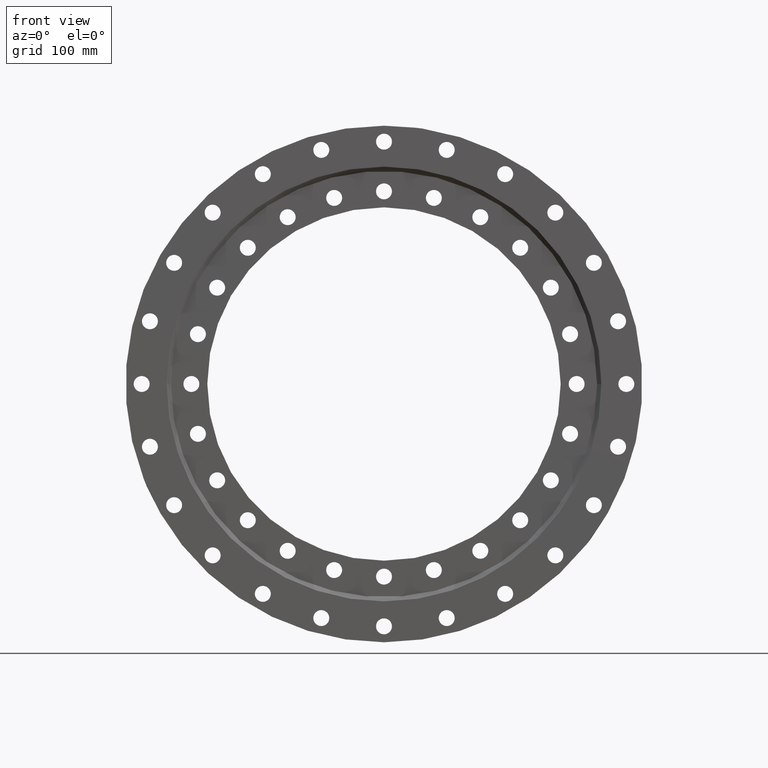
[diagram: clean part render]
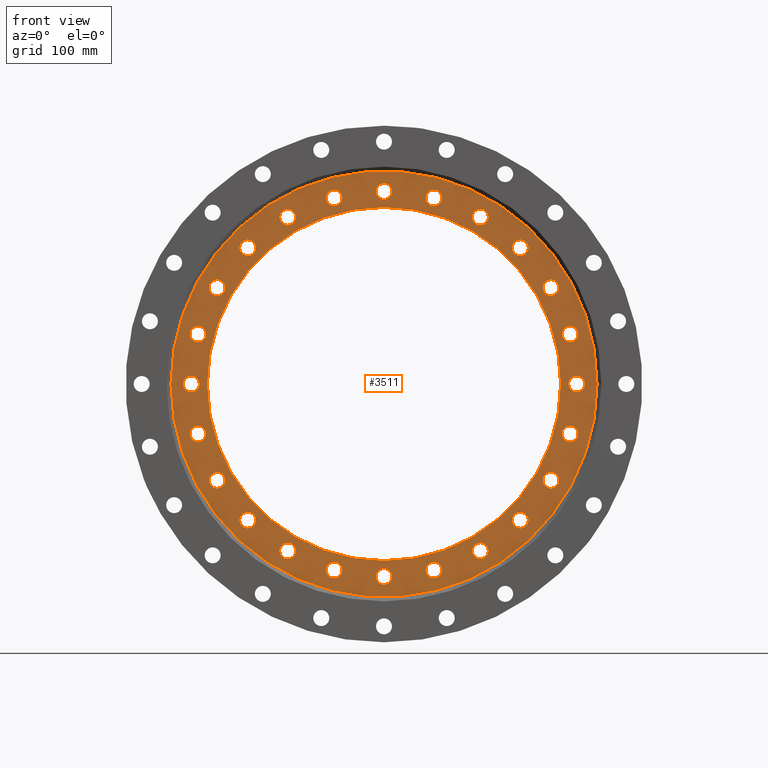
[diagram: same view with one face highlighted and labeled with its STEP entity id]
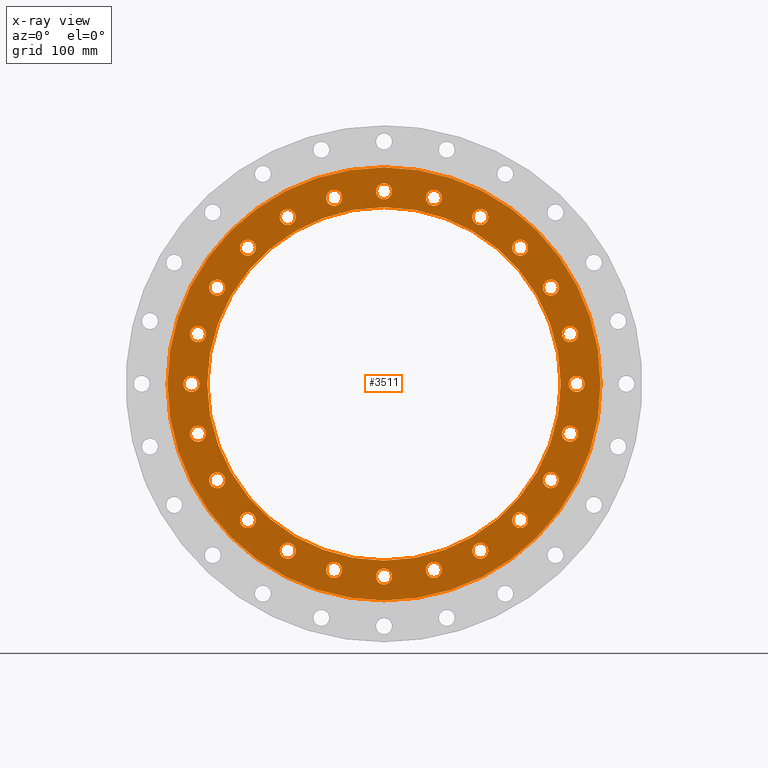
[diagram: x-ray of the same camera — body ghosted, the highlighted face saturated]
A machine part, front view. The second image highlights one B-rep face of the part: STEP entity #3511.
The next image is the same camera in x-ray: the body ghosted, the highlighted face saturated — about 0% of this face is hidden behind the body in this view.
In plain terms, the highlighted planar face has unit normal (-0, 1, -0).
Its self-contained STEP definition (entity closure, byte-faithful):
#8 = VERTEX_POINT ( 'NONE', #4380 ) ;
#20 = CARTESIAN_POINT ( 'NONE',  ( -132.7500000000020200, -27.00000000000004600, -229.9297447047673600 ) ) ;
#24 = AXIS2_PLACEMENT_3D ( 'NONE', #2376, #2435, #1545 ) ;
#26 = DIRECTION ( 'NONE',  ( -1.540743955509788700E-033, 1.000000000000000000, -2.727064569436390000E-017 ) ) ;
#29 = VERTEX_POINT ( 'NONE', #3546 ) ;
#35 = ORIENTED_EDGE ( 'NONE', *, *, #2725, .T. ) ;
#62 = EDGE_LOOP ( 'NONE', ( #1670, #3372 ) ) ;
#103 = AXIS2_PLACEMENT_3D ( 'NONE', #2787, #2152, #3173 ) ;
#109 = EDGE_LOOP ( 'NONE', ( #5662, #4720 ) ) ;
#111 = CIRCLE ( 'NONE', #1296, 10.99999999999999800 ) ;
#122 = CIRCLE ( 'NONE', #2431, 10.99999999999999800 ) ;
#184 = ORIENTED_EDGE ( 'NONE', *, *, #1236, .T. ) ;
#218 = AXIS2_PLACEMENT_3D ( 'NONE', #2883, #2900, #2918 ) ;
#248 = FACE_BOUND ( 'NONE', #3919, .T. ) ;
#265 = CARTESIAN_POINT ( 'NONE',  ( -1.974945732552023400E-012, -27.00000000000004600, -276.5000000000000000 ) ) ;
#273 = EDGE_CURVE ( 'NONE', #5757, #5338, #1240, .T. ) ;
#285 = DIRECTION ( 'NONE',  ( 0.0000000000000000000, 1.000000000000000000, -2.727064569436389400E-017 ) ) ;
#291 = FACE_BOUND ( 'NONE', #109, .T. ) ;
#292 = VERTEX_POINT ( 'NONE', #3681 ) ;
#296 = ORIENTED_EDGE ( 'NONE', *, *, #3620, .T. ) ;
#297 = AXIS2_PLACEMENT_3D ( 'NONE', #5639, #5746, #5729 ) ;
#304 = CIRCLE ( 'NONE', #2892, 10.99999999999999500 ) ;
#308 = AXIS2_PLACEMENT_3D ( 'NONE', #1824, #1819, #1753 ) ;
#311 = FACE_BOUND ( 'NONE', #571, .T. ) ;
#315 = ORIENTED_EDGE ( 'NONE', *, *, #4764, .T. ) ;
#319 = AXIS2_PLACEMENT_3D ( 'NONE', #1495, #1541, #1559 ) ;
#320 = FACE_BOUND ( 'NONE', #4800, .T. ) ;
#356 = EDGE_CURVE ( 'NONE', #5340, #2677, #3697, .T. ) ;
#357 = DIRECTION ( 'NONE',  ( 0.8660254037844326000, 0.0000000000000000000, 0.5000000000000105500 ) ) ;
#372 = FACE_OUTER_BOUND ( 'NONE', #4682, .T. ) ;
#373 = ORIENTED_EDGE ( 'NONE', *, *, #3935, .T. ) ;
#390 = AXIS2_PLACEMENT_3D ( 'NONE', #1077, #1091, #1113 ) ;
#418 = CARTESIAN_POINT ( 'NONE',  ( 256.4533068797478600, -27.00000000000002500, 68.71645647471839900 ) ) ;
#436 = FACE_BOUND ( 'NONE', #1393, .T. ) ;
#450 = ORIENTED_EDGE ( 'NONE', *, *, #3712, .T. ) ;
#453 = VERTEX_POINT ( 'NONE', #3661 ) ;
#455 = CARTESIAN_POINT ( 'NONE',  ( 265.5000000000000000, -27.00000000000003900, -11.00000000000104400 ) ) ;
#457 = AXIS2_PLACEMENT_3D ( 'NONE', #20, #26, #1770 ) ;
#501 = EDGE_LOOP ( 'NONE', ( #3448, #4189 ) ) ;
#508 = FACE_BOUND ( 'NONE', #3594, .T. ) ;
#516 = FACE_BOUND ( 'NONE', #1590, .T. ) ;
#519 = CIRCLE ( 'NONE', #2649, 11.00000000000000400 ) ;
#527 = VERTEX_POINT ( 'NONE', #3740 ) ;
#528 = FACE_BOUND ( 'NONE', #4249, .T. ) ;
#543 = DIRECTION ( 'NONE',  ( -3.081487911019577400E-033, 1.000000000000000000, -2.727064569436389700E-017 ) ) ;
#556 = EDGE_CURVE ( 'NONE', #762, #3642, #5644, .T. ) ;
#560 = DIRECTION ( 'NONE',  ( 0.8660254037844326000, 0.0000000000000000000, 0.5000000000000105500 ) ) ;
#563 = DIRECTION ( 'NONE',  ( -1.540743955509788700E-033, 1.000000000000000000, -2.727064569436389100E-017 ) ) ;
#571 = EDGE_LOOP ( 'NONE', ( #3307, #35 ) ) ;
#574 = CIRCLE ( 'NONE', #2937, 11.00000000000000900 ) ;
#580 = CIRCLE ( 'NONE', #5035, 11.00000000000002300 ) ;
#585 = AXIS2_PLACEMENT_3D ( 'NONE', #4138, #4156, #4177 ) ;
#615 = CIRCLE ( 'NONE', #3776, 11.00000000000001100 ) ;
#625 = DIRECTION ( 'NONE',  ( -0.8660254037844364900, 0.0000000000000000000, -0.5000000000000036600 ) ) ;
#626 = CARTESIAN_POINT ( 'NONE',  ( 229.9297447047688400, -27.00000000000002500, 132.7499999999993700 ) ) ;
#627 = DIRECTION ( 'NONE',  ( 9.244463733058732100E-033, 1.000000000000000000, -2.727064569436388400E-017 ) ) ;
#629 = DIRECTION ( 'NONE',  ( -0.8660254037844364900, 0.0000000000000000000, -0.5000000000000036600 ) ) ;
#651 = CARTESIAN_POINT ( 'NONE',  ( -229.9297447047698300, -27.00000000000004600, -132.7499999999977800 ) ) ;
#668 = EDGE_LOOP ( 'NONE', ( #4393, #4535 ) ) ;
#703 = VERTEX_POINT ( 'NONE', #3327 ) ;
#705 = CIRCLE ( 'NONE', #1651, 11.00000000000001200 ) ;
#717 = FACE_BOUND ( 'NONE', #3013, .T. ) ;
#729 = CARTESIAN_POINT ( 'NONE',  ( -229.9297447047668800, -27.00000000000002500, 121.7500000000027900 ) ) ;
#738 = EDGE_CURVE ( 'NONE', #3779, #5395, #5104, .T. ) ;
#751 = FACE_BOUND ( 'NONE', #5250, .T. ) ;
#762 = VERTEX_POINT ( 'NONE', #4252 ) ;
#787 = DIRECTION ( 'NONE',  ( -0.5000000000000007800, 0.0000000000000000000, 0.8660254037844382600 ) ) ;
#791 = FACE_BOUND ( 'NONE', #4057, .T. ) ;
#797 = DIRECTION ( 'NONE',  ( -3.081487911019577400E-033, 1.000000000000000000, -2.727064569436389700E-017 ) ) ;
#812 = CARTESIAN_POINT ( 'NONE',  ( -187.7368504050301100, -27.00000000000004600, -187.7368504050266400 ) ) ;
#828 = CIRCLE ( 'NONE', #4672, 11.00000000000000000 ) ;
#829 = DIRECTION ( 'NONE',  ( 0.0000000000000000000, 1.000000000000000000, -2.727064569436389400E-017 ) ) ;
#832 = FACE_BOUND ( 'NONE', #1767, .T. ) ;
#848 = AXIS2_PLACEMENT_3D ( 'NONE', #4556, #3936, #3563 ) ;
#867 = VERTEX_POINT ( 'NONE', #1883 ) ;
#906 = CIRCLE ( 'NONE', #3531, 10.99999999999998000 ) ;
#907 = DIRECTION ( 'NONE',  ( 0.0000000000000000000, 2.325269184068102600E-017, 1.000000000000000000 ) ) ;
#918 = FACE_BOUND ( 'NONE', #5332, .T. ) ;
#928 = EDGE_CURVE ( 'NONE', #3750, #4561, #4621, .T. ) ;
#955 = CIRCLE ( 'NONE', #1029, 10.99999999999998900 ) ;
#956 = DIRECTION ( 'NONE',  ( -0.9659258262890670900, 0.0000000000000000000, -0.2588190451025252400 ) ) ;
#960 = FACE_BOUND ( 'NONE', #1122, .T. ) ;
#979 = FACE_BOUND ( 'NONE', #4204, .T. ) ;
#986 = FACE_BOUND ( 'NONE', #1826, .T. ) ;
#993 = DIRECTION ( 'NONE',  ( 0.7071067811865537900, 0.0000000000000000000, -0.7071067811865412400 ) ) ;
#1029 = AXIS2_PLACEMENT_3D ( 'NONE', #2696, #2835, #2827 ) ;
#1030 = AXIS2_PLACEMENT_3D ( 'NONE', #4921, #5331, #5354 ) ;
#1037 = FACE_BOUND ( 'NONE', #5109, .T. ) ;
#1042 = VERTEX_POINT ( 'NONE', #5458 ) ;
#1043 = EDGE_CURVE ( 'NONE', #2146, #4148, #4502, .T. ) ;
#1057 = FACE_BOUND ( 'NONE', #668, .T. ) ;
#1063 = ORIENTED_EDGE ( 'NONE', *, *, #556, .T. ) ;
#1064 = EDGE_CURVE ( 'NONE', #1128, #2248, #4230, .T. ) ;
#1071 = VERTEX_POINT ( 'NONE', #455 ) ;
#1077 = CARTESIAN_POINT ( 'NONE',  ( 68.71645647471955000, -27.00000000000001800, 256.4533068797475700 ) ) ;
#1083 = VERTEX_POINT ( 'NONE', #729 ) ;
#1091 = DIRECTION ( 'NONE',  ( -1.540743955509788700E-033, 1.000000000000000000, -2.727064569436389700E-017 ) ) ;
#1093 = EDGE_CURVE ( 'NONE', #2553, #2951, #4157, .T. ) ;
#1113 = DIRECTION ( 'NONE',  ( 0.2588190451025075300, 0.0000000000000000000, 0.9659258262890719800 ) ) ;
#1122 = EDGE_LOOP ( 'NONE', ( #4306, #4388 ) ) ;
#1128 = VERTEX_POINT ( 'NONE', #265 ) ;
#1136 = FACE_BOUND ( 'NONE', #5404, .T. ) ;
#1159 = CARTESIAN_POINT ( 'NONE',  ( -68.71645647472132600, -27.00000000000004600, -256.4533068797471200 ) ) ;
#1166 = VERTEX_POINT ( 'NONE', #2538 ) ;
#1176 = DIRECTION ( 'NONE',  ( 1.540743955509788700E-033, 1.000000000000000000, -2.727064569436389100E-017 ) ) ;
#1189 = FACE_BOUND ( 'NONE', #5270, .T. ) ;
#1202 = CARTESIAN_POINT ( 'NONE',  ( 68.71645647471750400, -27.00000000000004600, -245.4533068797480800 ) ) ;
#1207 = CARTESIAN_POINT ( 'NONE',  ( 187.7368504050288000, -27.00000000000001800, 187.7368504050279500 ) ) ;
#1218 = DIRECTION ( 'NONE',  ( -0.2588190451025145200, 0.0000000000000000000, -0.9659258262890698700 ) ) ;
#1236 = EDGE_CURVE ( 'NONE', #3851, #2004, #3560, .T. ) ;
#1240 = CIRCLE ( 'NONE', #4659, 11.00000000000001100 ) ;
#1272 = EDGE_CURVE ( 'NONE', #4172, #2471, #3371, .T. ) ;
#1276 = FACE_BOUND ( 'NONE', #501, .T. ) ;
#1282 = DIRECTION ( 'NONE',  ( -3.081487911019577400E-033, 1.000000000000000000, -2.727064569436389400E-017 ) ) ;
#1296 = AXIS2_PLACEMENT_3D ( 'NONE', #4153, #4175, #4196 ) ;
#1309 = CARTESIAN_POINT ( 'NONE',  ( -229.9297447047668800, -27.00000000000002500, 132.7500000000027900 ) ) ;
#1330 = CARTESIAN_POINT ( 'NONE',  ( -132.7499999999969900, -27.00000000000001800, 229.9297447047702300 ) ) ;
#1331 = DIRECTION ( 'NONE',  ( 0.7071067811865386900, 0.0000000000000000000, 0.7071067811865563400 ) ) ;
#1332 = FACE_BOUND ( 'NONE', #3073, .T. ) ;
#1345 = FACE_BOUND ( 'NONE', #3421, .T. ) ;
#1361 = FACE_BOUND ( 'NONE', #62, .T. ) ;
#1377 = CARTESIAN_POINT ( 'NONE',  ( 256.4533068797478600, -27.00000000000002500, 68.71645647471839900 ) ) ;
#1379 = DIRECTION ( 'NONE',  ( 1.000000000000000000, 0.0000000000000000000, 1.047444401652938900E-014 ) ) ;
#1380 = DIRECTION ( 'NONE',  ( -3.081487911019577400E-033, 1.000000000000000000, -2.727064569436389700E-017 ) ) ;
#1383 = DIRECTION ( 'NONE',  ( -0.0000000000000000000, 1.000000000000000000, -2.727064569436389700E-017 ) ) ;
#1385 = CARTESIAN_POINT ( 'NONE',  ( 265.5000000000000000, -27.00000000000003900, -1.048568241134486000E-012 ) ) ;
#1393 = EDGE_LOOP ( 'NONE', ( #3593, #4261 ) ) ;
#1413 = ORIENTED_EDGE ( 'NONE', *, *, #2387, .T. ) ;
#1452 = DIRECTION ( 'NONE',  ( 0.5000000000000074400, 0.0000000000000000000, -0.8660254037844342700 ) ) ;
#1460 = DIRECTION ( 'NONE',  ( -1.540743955509788700E-033, 1.000000000000000000, -2.727064569436389100E-017 ) ) ;
#1465 = DIRECTION ( 'NONE',  ( 9.244463733058732100E-033, 1.000000000000000000, -2.727064569436389100E-017 ) ) ;
#1495 = CARTESIAN_POINT ( 'NONE',  ( 265.5000000000000000, -27.00000000000003900, -1.048568241134486000E-012 ) ) ;
#1511 = ORIENTED_EDGE ( 'NONE', *, *, #2481, .T. ) ;
#1521 = FACE_BOUND ( 'NONE', #2195, .T. ) ;
#1533 = CIRCLE ( 'NONE', #3639, 11.00000000000001100 ) ;
#1541 = DIRECTION ( 'NONE',  ( -3.081487911019577400E-033, 1.000000000000000000, -2.727064569436389700E-017 ) ) ;
#1545 = DIRECTION ( 'NONE',  ( -1.000000000000000000, 0.0000000000000000000, -3.491481338843111700E-015 ) ) ;
#1559 = DIRECTION ( 'NONE',  ( 1.000000000000000000, 0.0000000000000000000, 1.047444401652938900E-014 ) ) ;
#1588 = CIRCLE ( 'NONE', #4491, 11.00000000000001600 ) ;
#1589 = AXIS2_PLACEMENT_3D ( 'NONE', #3607, #3626, #3651 ) ;
#1590 = EDGE_LOOP ( 'NONE', ( #4650, #1063 ) ) ;
#1592 = CIRCLE ( 'NONE', #5259, 10.99999999999998400 ) ;
#1601 = CIRCLE ( 'NONE', #5150, 11.00000000000001100 ) ;
#1651 = AXIS2_PLACEMENT_3D ( 'NONE', #3225, #1460, #1452 ) ;
#1670 = ORIENTED_EDGE ( 'NONE', *, *, #2351, .T. ) ;
#1729 = CIRCLE ( 'NONE', #4498, 298.4125000000000800 ) ;
#1732 = VERTEX_POINT ( 'NONE', #3684 ) ;
#1741 = ORIENTED_EDGE ( 'NONE', *, *, #356, .T. ) ;
#1753 = DIRECTION ( 'NONE',  ( 6.982962677686258800E-015, 0.0000000000000000000, -1.000000000000000000 ) ) ;
#1767 = EDGE_LOOP ( 'NONE', ( #4454, #4605 ) ) ;
#1769 = AXIS2_PLACEMENT_3D ( 'NONE', #3314, #1775, #3906 ) ;
#1770 = DIRECTION ( 'NONE',  ( -0.4999999999999958900, 0.0000000000000000000, -0.8660254037844410400 ) ) ;
#1775 = DIRECTION ( 'NONE',  ( -0.0000000000000000000, 1.000000000000000000, -2.727064569436389700E-017 ) ) ;
#1776 = CIRCLE ( 'NONE', #2157, 10.99999999999998000 ) ;
#1778 = CIRCLE ( 'NONE', #4457, 11.00000000000001200 ) ;
#1812 = EDGE_CURVE ( 'NONE', #4644, #292, #705, .T. ) ;
#1815 = CARTESIAN_POINT ( 'NONE',  ( 187.7368504050273000, -27.00000000000004600, -176.7368504050294600 ) ) ;
#1819 = DIRECTION ( 'NONE',  ( -2.189528850507526700E-047, 1.000000000000000000, -2.727064569436389100E-017 ) ) ;
#1824 = CARTESIAN_POINT ( 'NONE',  ( -1.976292844031085600E-012, -27.00000000000004600, -265.5000000000000000 ) ) ;
#1826 = EDGE_LOOP ( 'NONE', ( #4443, #4475 ) ) ;
#1839 = ORIENTED_EDGE ( 'NONE', *, *, #4727, .T. ) ;
#1848 = CIRCLE ( 'NONE', #4305, 11.00000000000001600 ) ;
#1883 = CARTESIAN_POINT ( 'NONE',  ( -229.9297447047668800, -27.00000000000002500, 143.7500000000027600 ) ) ;
#1894 = EDGE_CURVE ( 'NONE', #2951, #2553, #955, .T. ) ;
#1900 = CIRCLE ( 'NONE', #5592, 10.99999999999998000 ) ;
#1912 = AXIS2_PLACEMENT_3D ( 'NONE', #2451, #2356, #2364 ) ;
#1913 = CARTESIAN_POINT ( 'NONE',  ( -68.71645647471572700, -27.00000000000001800, 256.4533068797486000 ) ) ;
#1952 = CARTESIAN_POINT ( 'NONE',  ( -68.71645647471572700, -27.00000000000001800, 267.4533068797486000 ) ) ;
#2004 = VERTEX_POINT ( 'NONE', #2584 ) ;
#2027 = EDGE_CURVE ( 'NONE', #29, #2921, #3655, .T. ) ;
#2045 = CIRCLE ( 'NONE', #390, 10.99999999999999300 ) ;
#2068 = CARTESIAN_POINT ( 'NONE',  ( 0.0000000000000000000, -27.00000000000002500, -1.098763298320856700E-016 ) ) ;
#2084 = DIRECTION ( 'NONE',  ( -0.0000000000000000000, 1.000000000000000000, -2.727064569436389700E-017 ) ) ;
#2111 = DIRECTION ( 'NONE',  ( 0.0000000000000000000, 2.849648420495781400E-017, 1.000000000000000000 ) ) ;
#2146 = VERTEX_POINT ( 'NONE', #5140 ) ;
#2152 = DIRECTION ( 'NONE',  ( 3.081487911019577400E-033, 1.000000000000000000, -2.727064569436389700E-017 ) ) ;
#2157 = AXIS2_PLACEMENT_3D ( 'NONE', #5779, #5852, #993 ) ;
#2174 = CARTESIAN_POINT ( 'NONE',  ( -256.4533068797484200, -27.00000000000003900, -79.71645647471662200 ) ) ;
#2177 = DIRECTION ( 'NONE',  ( 3.081487911019577400E-033, 1.000000000000000000, -2.727064569436389400E-017 ) ) ;
#2195 = EDGE_LOOP ( 'NONE', ( #2593, #3037 ) ) ;
#2248 = VERTEX_POINT ( 'NONE', #4967 ) ;
#2267 = VERTEX_POINT ( 'NONE', #2444 ) ;
#2302 = CARTESIAN_POINT ( 'NONE',  ( 0.0000000000000000000, -27.00000000000002500, -1.098763298320856700E-016 ) ) ;
#2330 = ORIENTED_EDGE ( 'NONE', *, *, #5394, .T. ) ;
#2345 = CARTESIAN_POINT ( 'NONE',  ( 132.7500000000004000, -27.00000000000001800, 229.9297447047682700 ) ) ;
#2351 = EDGE_CURVE ( 'NONE', #527, #4692, #304, .T. ) ;
#2356 = DIRECTION ( 'NONE',  ( -3.081487911019577400E-033, 1.000000000000000000, -2.727064569436389100E-017 ) ) ;
#2364 = DIRECTION ( 'NONE',  ( 0.8660254037844428200, 0.0000000000000000000, -0.4999999999999928900 ) ) ;
#2369 = CARTESIAN_POINT ( 'NONE',  ( 0.0000000000000000000, -27.00000000000002500, 298.4125000000000800 ) ) ;
#2376 = CARTESIAN_POINT ( 'NONE',  ( -265.5000000000000000, -27.00000000000003900, 2.904017446927684900E-012 ) ) ;
#2387 = EDGE_CURVE ( 'NONE', #867, #1083, #3257, .T. ) ;
#2431 = AXIS2_PLACEMENT_3D ( 'NONE', #2345, #3005, #2968 ) ;
#2432 = DIRECTION ( 'NONE',  ( 1.540743955509788700E-033, 1.000000000000000000, -2.727064569436389700E-017 ) ) ;
#2435 = DIRECTION ( 'NONE',  ( 3.081487911019577400E-033, 1.000000000000000000, -2.727064569436389400E-017 ) ) ;
#2444 = CARTESIAN_POINT ( 'NONE',  ( -256.4533068797468900, -27.00000000000002500, 79.71645647472222200 ) ) ;
#2451 = CARTESIAN_POINT ( 'NONE',  ( 229.9297447047677800, -27.00000000000004600, -132.7500000000011900 ) ) ;
#2454 = EDGE_CURVE ( 'NONE', #3452, #3979, #4040, .T. ) ;
#2470 = EDGE_CURVE ( 'NONE', #1083, #867, #519, .T. ) ;
#2471 = VERTEX_POINT ( 'NONE', #2710 ) ;
#2476 = VERTEX_POINT ( 'NONE', #3130 ) ;
#2481 = EDGE_CURVE ( 'NONE', #5278, #1042, #3445, .T. ) ;
#2487 = CARTESIAN_POINT ( 'NONE',  ( -132.7500000000020200, -27.00000000000004600, -240.9297447047673600 ) ) ;
#2489 = DIRECTION ( 'NONE',  ( -0.0000000000000000000, 1.000000000000000000, -2.727064569436389700E-017 ) ) ;
#2505 = CARTESIAN_POINT ( 'NONE',  ( -187.7368504050259900, -27.00000000000001800, 176.7368504050307900 ) ) ;
#2508 = CARTESIAN_POINT ( 'NONE',  ( 256.4533068797473400, -27.00000000000003900, -68.71645647472043100 ) ) ;
#2511 = EDGE_CURVE ( 'NONE', #5306, #2267, #580, .T. ) ;
#2538 = CARTESIAN_POINT ( 'NONE',  ( 187.7368504050273000, -27.00000000000004600, -198.7368504050294900 ) ) ;
#2539 = CARTESIAN_POINT ( 'NONE',  ( 229.9297447047688400, -27.00000000000002500, 132.7499999999993700 ) ) ;
#2540 = ORIENTED_EDGE ( 'NONE', *, *, #3726, .T. ) ;
#2541 = CARTESIAN_POINT ( 'NONE',  ( -132.7500000000020200, -27.00000000000004600, -218.9297447047673300 ) ) ;
#2553 = VERTEX_POINT ( 'NONE', #2541 ) ;
#2559 = CARTESIAN_POINT ( 'NONE',  ( -256.4533068797468900, -27.00000000000002500, 68.71645647472223600 ) ) ;
#2584 = CARTESIAN_POINT ( 'NONE',  ( -265.5000000000000000, -27.00000000000003900, -10.99999999999709200 ) ) ;
#2593 = ORIENTED_EDGE ( 'NONE', *, *, #3790, .T. ) ;
#2608 = ORIENTED_EDGE ( 'NONE', *, *, #5606, .F. ) ;
#2609 = VERTEX_POINT ( 'NONE', #3486 ) ;
#2622 = CARTESIAN_POINT ( 'NONE',  ( 132.7500000000004000, -27.00000000000001800, 240.9297447047682400 ) ) ;
#2625 = AXIS2_PLACEMENT_3D ( 'NONE', #2539, #3100, #357 ) ;
#2640 = CARTESIAN_POINT ( 'NONE',  ( -229.9297447047698300, -27.00000000000004600, -132.7499999999977800 ) ) ;
#2649 = AXIS2_PLACEMENT_3D ( 'NONE', #3075, #5697, #3473 ) ;
#2654 = DIRECTION ( 'NONE',  ( 9.244463733058732100E-033, 1.000000000000000000, -2.727064569436388400E-017 ) ) ;
#2677 = VERTEX_POINT ( 'NONE', #5093 ) ;
#2695 = CARTESIAN_POINT ( 'NONE',  ( -187.7368504050301100, -27.00000000000004600, -187.7368504050266400 ) ) ;
#2696 = CARTESIAN_POINT ( 'NONE',  ( -132.7500000000020200, -27.00000000000004600, -229.9297447047673600 ) ) ;
#2710 = CARTESIAN_POINT ( 'NONE',  ( -187.7368504050259900, -27.00000000000001800, 198.7368504050307900 ) ) ;
#2720 = DIRECTION ( 'NONE',  ( 0.0000000000000000000, 2.325269184068102600E-017, 1.000000000000000000 ) ) ;
#2725 = EDGE_CURVE ( 'NONE', #5338, #5757, #4438, .T. ) ;
#2726 = CIRCLE ( 'NONE', #3364, 10.99999999999998400 ) ;
#2744 = CARTESIAN_POINT ( 'NONE',  ( 0.0000000000000000000, -27.00000000000003200, -1.098763298320854800E-016 ) ) ;
#2771 = EDGE_CURVE ( 'NONE', #2609, #5774, #1588, .T. ) ;
#2787 = CARTESIAN_POINT ( 'NONE',  ( -187.7368504050259900, -27.00000000000001800, 187.7368504050307900 ) ) ;
#2827 = DIRECTION ( 'NONE',  ( -0.4999999999999958900, 0.0000000000000000000, -0.8660254037844410400 ) ) ;
#2831 = CARTESIAN_POINT ( 'NONE',  ( -256.4533068797484200, -27.00000000000003900, -68.71645647471662200 ) ) ;
#2835 = DIRECTION ( 'NONE',  ( -1.540743955509788700E-033, 1.000000000000000000, -2.727064569436390000E-017 ) ) ;
#2855 = DIRECTION ( 'NONE',  ( -0.9659258262890693100, 0.0000000000000000000, 0.2588190451025169100 ) ) ;
#2879 = VERTEX_POINT ( 'NONE', #5443 ) ;
#2882 = CIRCLE ( 'NONE', #1589, 10.99999999999999100 ) ;
#2883 = CARTESIAN_POINT ( 'NONE',  ( -187.7368504050259900, -27.00000000000001800, 187.7368504050307900 ) ) ;
#2886 = EDGE_CURVE ( 'NONE', #4561, #3750, #2948, .T. ) ;
#2892 = AXIS2_PLACEMENT_3D ( 'NONE', #1330, #3941, #787 ) ;
#2896 = CARTESIAN_POINT ( 'NONE',  ( -187.7368504050301100, -27.00000000000004600, -176.7368504050266200 ) ) ;
#2900 = DIRECTION ( 'NONE',  ( 3.081487911019577400E-033, 1.000000000000000000, -2.727064569436389700E-017 ) ) ;
#2918 = DIRECTION ( 'NONE',  ( -0.7071067811865487900, 0.0000000000000000000, 0.7071067811865462400 ) ) ;
#2921 = VERTEX_POINT ( 'NONE', #3744 ) ;
#2935 = CIRCLE ( 'NONE', #2625, 11.00000000000000000 ) ;
#2937 = AXIS2_PLACEMENT_3D ( 'NONE', #418, #797, #4025 ) ;
#2942 = DIRECTION ( 'NONE',  ( 0.0000000000000000000, 2.849648420495781400E-017, 1.000000000000000000 ) ) ;
#2948 = CIRCLE ( 'NONE', #4292, 10.99999999999999800 ) ;
#2949 = EDGE_CURVE ( 'NONE', #2995, #4766, #5362, .T. ) ;
#2951 = VERTEX_POINT ( 'NONE', #2487 ) ;
#2963 = DIRECTION ( 'NONE',  ( 3.081487911019577400E-033, 1.000000000000000000, -2.727064569436389400E-017 ) ) ;
#2968 = DIRECTION ( 'NONE',  ( 0.4999999999999879000, 0.0000000000000000000, 0.8660254037844455900 ) ) ;
#2977 = PLANE ( 'NONE',  #1769 ) ;
#2983 = CIRCLE ( 'NONE', #1030, 10.99999999999999500 ) ;
#2994 = AXIS2_PLACEMENT_3D ( 'NONE', #2695, #285, #3051 ) ;
#2995 = VERTEX_POINT ( 'NONE', #4061 ) ;
#3005 = DIRECTION ( 'NONE',  ( -1.540743955509788700E-033, 1.000000000000000000, -2.727064569436389700E-017 ) ) ;
#3013 = EDGE_LOOP ( 'NONE', ( #4594, #3190 ) ) ;
#3017 = VERTEX_POINT ( 'NONE', #3361 ) ;
#3024 = CARTESIAN_POINT ( 'NONE',  ( -1.976292844031085600E-012, -27.00000000000004600, -265.5000000000000000 ) ) ;
#3025 = DIRECTION ( 'NONE',  ( -2.189528850507526700E-047, 1.000000000000000000, -2.727064569436389100E-017 ) ) ;
#3037 = ORIENTED_EDGE ( 'NONE', *, *, #1272, .T. ) ;
#3038 = DIRECTION ( 'NONE',  ( 6.982962677686258800E-015, 0.0000000000000000000, -1.000000000000000000 ) ) ;
#3051 = DIRECTION ( 'NONE',  ( -0.7071067811865438000, 0.0000000000000000000, -0.7071067811865513500 ) ) ;
#3071 = EDGE_CURVE ( 'NONE', #3270, #1732, #4607, .T. ) ;
#3073 = EDGE_LOOP ( 'NONE', ( #1413, #5296 ) ) ;
#3075 = CARTESIAN_POINT ( 'NONE',  ( -229.9297447047668800, -27.00000000000002500, 132.7500000000027900 ) ) ;
#3081 = AXIS2_PLACEMENT_3D ( 'NONE', #1309, #3982, #5798 ) ;
#3085 = DIRECTION ( 'NONE',  ( 0.9659258262890655400, 0.0000000000000000000, 0.2588190451025311200 ) ) ;
#3098 = DIRECTION ( 'NONE',  ( -3.081487911019577400E-033, 1.000000000000000000, -2.727064569436389700E-017 ) ) ;
#3100 = DIRECTION ( 'NONE',  ( -3.081487911019577400E-033, 1.000000000000000000, -2.727064569436389700E-017 ) ) ;
#3107 = EDGE_CURVE ( 'NONE', #2267, #5306, #4719, .T. ) ;
#3124 = ORIENTED_EDGE ( 'NONE', *, *, #5225, .T. ) ;
#3130 = CARTESIAN_POINT ( 'NONE',  ( 265.5000000000000000, -27.00000000000003900, 10.99999999999894800 ) ) ;
#3173 = DIRECTION ( 'NONE',  ( -0.7071067811865487900, 0.0000000000000000000, 0.7071067811865462400 ) ) ;
#3188 = AXIS2_PLACEMENT_3D ( 'NONE', #2068, #2084, #2111 ) ;
#3190 = ORIENTED_EDGE ( 'NONE', *, *, #3214, .T. ) ;
#3210 = ORIENTED_EDGE ( 'NONE', *, *, #5022, .T. ) ;
#3212 = EDGE_CURVE ( 'NONE', #3979, #3452, #4053, .T. ) ;
#3214 = EDGE_CURVE ( 'NONE', #1166, #4232, #4185, .T. ) ;
#3225 = CARTESIAN_POINT ( 'NONE',  ( 132.7499999999985800, -27.00000000000004600, -229.9297447047693200 ) ) ;
#3257 = CIRCLE ( 'NONE', #3081, 11.00000000000000400 ) ;
#3270 = VERTEX_POINT ( 'NONE', #5132 ) ;
#3289 = AXIS2_PLACEMENT_3D ( 'NONE', #4240, #4355, #4337 ) ;
#3307 = ORIENTED_EDGE ( 'NONE', *, *, #273, .T. ) ;
#3314 = CARTESIAN_POINT ( 'NONE',  ( 0.0000000000000000000, -27.00000000000002100, 243.5000000000000000 ) ) ;
#3319 = AXIS2_PLACEMENT_3D ( 'NONE', #812, #829, #4198 ) ;
#3327 = CARTESIAN_POINT ( 'NONE',  ( 0.0000000000000000000, -27.00000000000001800, 243.5000000000000000 ) ) ;
#3337 = DIRECTION ( 'NONE',  ( -0.2588190451025216800, 0.0000000000000000000, 0.9659258262890679800 ) ) ;
#3361 = CARTESIAN_POINT ( 'NONE',  ( 2.982014955923805300E-014, -27.00000000000003200, -243.5000000000000000 ) ) ;
#3364 = AXIS2_PLACEMENT_3D ( 'NONE', #2640, #2654, #625 ) ;
#3371 = CIRCLE ( 'NONE', #103, 10.99999999999998000 ) ;
#3372 = ORIENTED_EDGE ( 'NONE', *, *, #3846, .T. ) ;
#3408 = CARTESIAN_POINT ( 'NONE',  ( -132.7499999999969900, -27.00000000000001800, 218.9297447047702300 ) ) ;
#3421 = EDGE_LOOP ( 'NONE', ( #4648, #4365 ) ) ;
#3445 = CIRCLE ( 'NONE', #5218, 11.00000000000000000 ) ;
#3448 = ORIENTED_EDGE ( 'NONE', *, *, #4042, .T. ) ;
#3449 = EDGE_CURVE ( 'NONE', #4148, #2146, #1900, .T. ) ;
#3452 = VERTEX_POINT ( 'NONE', #2896 ) ;
#3460 = ORIENTED_EDGE ( 'NONE', *, *, #5356, .T. ) ;
#3473 = DIRECTION ( 'NONE',  ( -0.8660254037844399300, 0.0000000000000000000, 0.4999999999999977200 ) ) ;
#3484 = EDGE_CURVE ( 'NONE', #4232, #1166, #1776, .T. ) ;
#3486 = CARTESIAN_POINT ( 'NONE',  ( -68.71645647472132600, -27.00000000000004600, -267.4533068797471200 ) ) ;
#3501 = DIRECTION ( 'NONE',  ( -1.540743955509788700E-033, 1.000000000000000000, -2.727064569436389100E-017 ) ) ;
#3504 = DIRECTION ( 'NONE',  ( 3.081487911019577400E-033, 1.000000000000000000, -2.727064569436389400E-017 ) ) ;
#3511 = ADVANCED_FACE ( 'NONE', ( #1361, #1521, #1332, #1136, #1189, #1276, #1345, #1037, #960, #979, #986, #1057, #832, #717, #751, #791, #918, #516, #528, #436, #508, #320, #291, #311, #372, #248 ), #2977, .F. ) ;
#3520 = CARTESIAN_POINT ( 'NONE',  ( -256.4533068797468900, -27.00000000000002500, 68.71645647472223600 ) ) ;
#3531 = AXIS2_PLACEMENT_3D ( 'NONE', #1207, #1282, #1331 ) ;
#3536 = CARTESIAN_POINT ( 'NONE',  ( 68.71645647471750400, -27.00000000000004600, -267.4533068797480800 ) ) ;
#3546 = CARTESIAN_POINT ( 'NONE',  ( 229.9297447047677800, -27.00000000000004600, -121.7500000000012100 ) ) ;
#3560 = CIRCLE ( 'NONE', #24, 11.00000000000001100 ) ;
#3563 = DIRECTION ( 'NONE',  ( 0.2588190451025276200, 0.0000000000000000000, -0.9659258262890664200 ) ) ;
#3583 = DIRECTION ( 'NONE',  ( -0.9659258262890693100, 0.0000000000000000000, 0.2588190451025169100 ) ) ;
#3585 = AXIS2_PLACEMENT_3D ( 'NONE', #3520, #3504, #3583 ) ;
#3593 = ORIENTED_EDGE ( 'NONE', *, *, #4878, .T. ) ;
#3594 = EDGE_LOOP ( 'NONE', ( #1839, #373 ) ) ;
#3607 = CARTESIAN_POINT ( 'NONE',  ( -256.4533068797484200, -27.00000000000003900, -68.71645647471662200 ) ) ;
#3616 = ORIENTED_EDGE ( 'NONE', *, *, #4106, .T. ) ;
#3620 = EDGE_CURVE ( 'NONE', #4143, #2879, #4245, .T. ) ;
#3626 = DIRECTION ( 'NONE',  ( 9.244463733058732100E-033, 1.000000000000000000, -2.727064569436389100E-017 ) ) ;
#3639 = AXIS2_PLACEMENT_3D ( 'NONE', #1385, #1380, #1379 ) ;
#3642 = VERTEX_POINT ( 'NONE', #3898 ) ;
#3649 = DIRECTION ( 'NONE',  ( 0.5000000000000074400, 0.0000000000000000000, -0.8660254037844342700 ) ) ;
#3651 = DIRECTION ( 'NONE',  ( -0.9659258262890670900, 0.0000000000000000000, -0.2588190451025252400 ) ) ;
#3655 = CIRCLE ( 'NONE', #1912, 11.00000000000000000 ) ;
#3657 = DIRECTION ( 'NONE',  ( -0.2588190451025145200, 0.0000000000000000000, -0.9659258262890698700 ) ) ;
#3661 = CARTESIAN_POINT ( 'NONE',  ( -229.9297447047698300, -27.00000000000004600, -121.7499999999978000 ) ) ;
#3681 = CARTESIAN_POINT ( 'NONE',  ( 132.7499999999985800, -27.00000000000004600, -218.9297447047693500 ) ) ;
#3684 = CARTESIAN_POINT ( 'NONE',  ( 187.7368504050288000, -27.00000000000001800, 198.7368504050279200 ) ) ;
#3696 = DIRECTION ( 'NONE',  ( 0.0000000000000000000, 0.0000000000000000000, 1.000000000000000000 ) ) ;
#3697 = CIRCLE ( 'NONE', #4774, 10.99999999999999300 ) ;
#3712 = EDGE_CURVE ( 'NONE', #2677, #5340, #2045, .T. ) ;
#3713 = DIRECTION ( 'NONE',  ( 0.0000000000000000000, 1.000000000000000000, -2.727064569436389700E-017 ) ) ;
#3726 = EDGE_CURVE ( 'NONE', #1071, #2476, #4876, .T. ) ;
#3729 = AXIS2_PLACEMENT_3D ( 'NONE', #5564, #5584, #5646 ) ;
#3735 = CARTESIAN_POINT ( 'NONE',  ( 3.830269434956789300E-012, -27.00000000000001800, 265.5000000000000000 ) ) ;
#3740 = CARTESIAN_POINT ( 'NONE',  ( -132.7499999999969900, -27.00000000000001800, 240.9297447047702600 ) ) ;
#3744 = CARTESIAN_POINT ( 'NONE',  ( 229.9297447047677800, -27.00000000000004600, -143.7500000000012200 ) ) ;
#3750 = VERTEX_POINT ( 'NONE', #1202 ) ;
#3776 = AXIS2_PLACEMENT_3D ( 'NONE', #4182, #2963, #4166 ) ;
#3779 = VERTEX_POINT ( 'NONE', #2174 ) ;
#3790 = EDGE_CURVE ( 'NONE', #2471, #4172, #4667, .T. ) ;
#3846 = EDGE_CURVE ( 'NONE', #4692, #527, #2983, .T. ) ;
#3848 = CARTESIAN_POINT ( 'NONE',  ( -229.9297447047698300, -27.00000000000004600, -143.7499999999977500 ) ) ;
#3851 = VERTEX_POINT ( 'NONE', #4480 ) ;
#3859 = CARTESIAN_POINT ( 'NONE',  ( 229.9297447047688400, -27.00000000000002500, 121.7499999999993700 ) ) ;
#3898 = CARTESIAN_POINT ( 'NONE',  ( 256.4533068797478600, -27.00000000000002500, 79.71645647471839900 ) ) ;
#3906 = DIRECTION ( 'NONE',  ( 0.0000000000000000000, 2.727064569436389700E-017, 1.000000000000000000 ) ) ;
#3919 = EDGE_LOOP ( 'NONE', ( #3616, #3460 ) ) ;
#3925 = DIRECTION ( 'NONE',  ( 0.8660254037844428200, 0.0000000000000000000, -0.4999999999999928900 ) ) ;
#3935 = EDGE_CURVE ( 'NONE', #8, #5586, #111, .T. ) ;
#3936 = DIRECTION ( 'NONE',  ( -1.540743955509788700E-033, 1.000000000000000000, -2.727064569436389100E-017 ) ) ;
#3938 = DIRECTION ( 'NONE',  ( -3.081487911019577400E-033, 1.000000000000000000, -2.727064569436389100E-017 ) ) ;
#3941 = DIRECTION ( 'NONE',  ( 1.540743955509788700E-033, 1.000000000000000000, -2.727064569436389700E-017 ) ) ;
#3943 = CARTESIAN_POINT ( 'NONE',  ( 229.9297447047677800, -27.00000000000004600, -132.7500000000011900 ) ) ;
#3979 = VERTEX_POINT ( 'NONE', #4395 ) ;
#3982 = DIRECTION ( 'NONE',  ( 3.081487911019577400E-033, 1.000000000000000000, -2.727064569436389700E-017 ) ) ;
#3985 = CARTESIAN_POINT ( 'NONE',  ( 256.4533068797473400, -27.00000000000003900, -79.71645647472041700 ) ) ;
#4011 = AXIS2_PLACEMENT_3D ( 'NONE', #4606, #1383, #907 ) ;
#4025 = DIRECTION ( 'NONE',  ( 0.9659258262890655400, 0.0000000000000000000, 0.2588190451025311200 ) ) ;
#4040 = CIRCLE ( 'NONE', #2994, 10.99999999999998000 ) ;
#4042 = EDGE_CURVE ( 'NONE', #5395, #3779, #2882, .T. ) ;
#4053 = CIRCLE ( 'NONE', #3319, 10.99999999999998000 ) ;
#4057 = EDGE_LOOP ( 'NONE', ( #4638, #296 ) ) ;
#4061 = CARTESIAN_POINT ( 'NONE',  ( 3.654499129505596500E-014, -27.00000000000003900, -298.4125000000000800 ) ) ;
#4087 = DIRECTION ( 'NONE',  ( -1.540743955509788700E-033, 1.000000000000000000, -2.727064569436389700E-017 ) ) ;
#4106 = EDGE_CURVE ( 'NONE', #703, #3017, #4366, .T. ) ;
#4107 = DIRECTION ( 'NONE',  ( 0.2588190451025075300, 0.0000000000000000000, 0.9659258262890719800 ) ) ;
#4119 = CARTESIAN_POINT ( 'NONE',  ( -256.4533068797484200, -27.00000000000003900, -57.71645647471663000 ) ) ;
#4133 = CARTESIAN_POINT ( 'NONE',  ( 3.831616546435851400E-012, -27.00000000000001800, 254.5000000000000000 ) ) ;
#4138 = CARTESIAN_POINT ( 'NONE',  ( 256.4533068797473400, -27.00000000000003900, -68.71645647472043100 ) ) ;
#4143 = VERTEX_POINT ( 'NONE', #3985 ) ;
#4148 = VERTEX_POINT ( 'NONE', #1952 ) ;
#4153 = CARTESIAN_POINT ( 'NONE',  ( 132.7500000000004000, -27.00000000000001800, 229.9297447047682700 ) ) ;
#4156 = DIRECTION ( 'NONE',  ( -3.081487911019577400E-033, 1.000000000000000000, -2.727064569436389100E-017 ) ) ;
#4157 = CIRCLE ( 'NONE', #457, 10.99999999999998900 ) ;
#4166 = DIRECTION ( 'NONE',  ( -1.000000000000000000, 0.0000000000000000000, -3.491481338843111700E-015 ) ) ;
#4167 = CARTESIAN_POINT ( 'NONE',  ( 68.71645647471955000, -27.00000000000001800, 256.4533068797475700 ) ) ;
#4172 = VERTEX_POINT ( 'NONE', #2505 ) ;
#4175 = DIRECTION ( 'NONE',  ( -1.540743955509788700E-033, 1.000000000000000000, -2.727064569436389700E-017 ) ) ;
#4177 = DIRECTION ( 'NONE',  ( 0.9659258262890708700, 0.0000000000000000000, -0.2588190451025110300 ) ) ;
#4182 = CARTESIAN_POINT ( 'NONE',  ( -265.5000000000000000, -27.00000000000003900, 2.904017446927684900E-012 ) ) ;
#4185 = CIRCLE ( 'NONE', #3289, 10.99999999999998000 ) ;
#4189 = ORIENTED_EDGE ( 'NONE', *, *, #738, .T. ) ;
#4196 = DIRECTION ( 'NONE',  ( 0.4999999999999879000, 0.0000000000000000000, 0.8660254037844455900 ) ) ;
#4198 = DIRECTION ( 'NONE',  ( -0.7071067811865438000, 0.0000000000000000000, -0.7071067811865513500 ) ) ;
#4204 = EDGE_LOOP ( 'NONE', ( #4312, #4519 ) ) ;
#4230 = CIRCLE ( 'NONE', #308, 11.00000000000001100 ) ;
#4232 = VERTEX_POINT ( 'NONE', #1815 ) ;
#4238 = ORIENTED_EDGE ( 'NONE', *, *, #2454, .T. ) ;
#4240 = CARTESIAN_POINT ( 'NONE',  ( 187.7368504050273000, -27.00000000000004600, -187.7368504050294600 ) ) ;
#4245 = CIRCLE ( 'NONE', #585, 11.00000000000000500 ) ;
#4249 = EDGE_LOOP ( 'NONE', ( #315, #1511 ) ) ;
#4252 = CARTESIAN_POINT ( 'NONE',  ( 256.4533068797478600, -27.00000000000002500, 57.71645647471840600 ) ) ;
#4258 = ORIENTED_EDGE ( 'NONE', *, *, #3212, .T. ) ;
#4261 = ORIENTED_EDGE ( 'NONE', *, *, #3071, .T. ) ;
#4292 = AXIS2_PLACEMENT_3D ( 'NONE', #4533, #563, #4968 ) ;
#4303 = DIRECTION ( 'NONE',  ( 1.540743955509788700E-033, 1.000000000000000000, -2.727064569436389100E-017 ) ) ;
#4305 = AXIS2_PLACEMENT_3D ( 'NONE', #4313, #4303, #3657 ) ;
#4306 = ORIENTED_EDGE ( 'NONE', *, *, #1093, .T. ) ;
#4311 = CARTESIAN_POINT ( 'NONE',  ( 3.830269434956789300E-012, -27.00000000000001800, 265.5000000000000000 ) ) ;
#4312 = ORIENTED_EDGE ( 'NONE', *, *, #5547, .T. ) ;
#4313 = CARTESIAN_POINT ( 'NONE',  ( -68.71645647472132600, -27.00000000000004600, -256.4533068797471200 ) ) ;
#4321 = DIRECTION ( 'NONE',  ( 0.0000000000000000000, 1.000000000000000000, -2.727064569436389700E-017 ) ) ;
#4328 = DIRECTION ( 'NONE',  ( -0.0000000000000000000, 1.000000000000000000, -2.727064569436389700E-017 ) ) ;
#4337 = DIRECTION ( 'NONE',  ( 0.7071067811865537900, 0.0000000000000000000, -0.7071067811865412400 ) ) ;
#4355 = DIRECTION ( 'NONE',  ( 0.0000000000000000000, 1.000000000000000000, -2.727064569436390300E-017 ) ) ;
#4365 = ORIENTED_EDGE ( 'NONE', *, *, #4785, .T. ) ;
#4366 = CIRCLE ( 'NONE', #3188, 243.5000000000000000 ) ;
#4380 = CARTESIAN_POINT ( 'NONE',  ( 132.7500000000004000, -27.00000000000001800, 218.9297447047682700 ) ) ;
#4388 = ORIENTED_EDGE ( 'NONE', *, *, #1894, .T. ) ;
#4393 = ORIENTED_EDGE ( 'NONE', *, *, #928, .T. ) ;
#4395 = CARTESIAN_POINT ( 'NONE',  ( -187.7368504050301100, -27.00000000000004600, -198.7368504050266400 ) ) ;
#4438 = CIRCLE ( 'NONE', #4484, 11.00000000000001100 ) ;
#4440 = ORIENTED_EDGE ( 'NONE', *, *, #2511, .T. ) ;
#4443 = ORIENTED_EDGE ( 'NONE', *, *, #5622, .T. ) ;
#4454 = ORIENTED_EDGE ( 'NONE', *, *, #5576, .T. ) ;
#4457 = AXIS2_PLACEMENT_3D ( 'NONE', #4623, #3501, #3649 ) ;
#4467 = EDGE_CURVE ( 'NONE', #3642, #762, #574, .T. ) ;
#4475 = ORIENTED_EDGE ( 'NONE', *, *, #1064, .T. ) ;
#4480 = CARTESIAN_POINT ( 'NONE',  ( -265.5000000000000000, -27.00000000000003900, 11.00000000000289900 ) ) ;
#4484 = AXIS2_PLACEMENT_3D ( 'NONE', #4311, #4321, #5187 ) ;
#4491 = AXIS2_PLACEMENT_3D ( 'NONE', #1159, #1176, #1218 ) ;
#4498 = AXIS2_PLACEMENT_3D ( 'NONE', #2744, #4328, #2720 ) ;
#4502 = CIRCLE ( 'NONE', #297, 10.99999999999998000 ) ;
#4519 = ORIENTED_EDGE ( 'NONE', *, *, #2771, .T. ) ;
#4533 = CARTESIAN_POINT ( 'NONE',  ( 68.71645647471750400, -27.00000000000004600, -256.4533068797480800 ) ) ;
#4535 = ORIENTED_EDGE ( 'NONE', *, *, #2886, .T. ) ;
#4556 = CARTESIAN_POINT ( 'NONE',  ( 68.71645647471750400, -27.00000000000004600, -256.4533068797480800 ) ) ;
#4560 = ORIENTED_EDGE ( 'NONE', *, *, #2949, .F. ) ;
#4561 = VERTEX_POINT ( 'NONE', #3536 ) ;
#4579 = ORIENTED_EDGE ( 'NONE', *, *, #2027, .T. ) ;
#4594 = ORIENTED_EDGE ( 'NONE', *, *, #3484, .T. ) ;
#4605 = ORIENTED_EDGE ( 'NONE', *, *, #1812, .T. ) ;
#4606 = CARTESIAN_POINT ( 'NONE',  ( 0.0000000000000000000, -27.00000000000003200, -1.098763298320854800E-016 ) ) ;
#4607 = CIRCLE ( 'NONE', #3729, 10.99999999999998000 ) ;
#4621 = CIRCLE ( 'NONE', #848, 10.99999999999999800 ) ;
#4623 = CARTESIAN_POINT ( 'NONE',  ( 132.7499999999985800, -27.00000000000004600, -229.9297447047693200 ) ) ;
#4638 = ORIENTED_EDGE ( 'NONE', *, *, #5364, .T. ) ;
#4644 = VERTEX_POINT ( 'NONE', #4707 ) ;
#4648 = ORIENTED_EDGE ( 'NONE', *, *, #5663, .T. ) ;
#4650 = ORIENTED_EDGE ( 'NONE', *, *, #4467, .T. ) ;
#4659 = AXIS2_PLACEMENT_3D ( 'NONE', #3735, #3713, #3696 ) ;
#4667 = CIRCLE ( 'NONE', #218, 10.99999999999998000 ) ;
#4669 = ORIENTED_EDGE ( 'NONE', *, *, #3107, .T. ) ;
#4672 = AXIS2_PLACEMENT_3D ( 'NONE', #3943, #3938, #3925 ) ;
#4682 = EDGE_LOOP ( 'NONE', ( #2608, #4560 ) ) ;
#4692 = VERTEX_POINT ( 'NONE', #3408 ) ;
#4707 = CARTESIAN_POINT ( 'NONE',  ( 132.7499999999985800, -27.00000000000004600, -240.9297447047692900 ) ) ;
#4715 = AXIS2_PLACEMENT_3D ( 'NONE', #2508, #5367, #4892 ) ;
#4719 = CIRCLE ( 'NONE', #3585, 11.00000000000002300 ) ;
#4720 = ORIENTED_EDGE ( 'NONE', *, *, #1043, .T. ) ;
#4727 = EDGE_CURVE ( 'NONE', #5586, #8, #122, .T. ) ;
#4764 = EDGE_CURVE ( 'NONE', #1042, #5278, #2935, .T. ) ;
#4766 = VERTEX_POINT ( 'NONE', #2369 ) ;
#4774 = AXIS2_PLACEMENT_3D ( 'NONE', #4167, #4087, #4107 ) ;
#4785 = EDGE_CURVE ( 'NONE', #5288, #453, #2726, .T. ) ;
#4799 = AXIS2_PLACEMENT_3D ( 'NONE', #2302, #2489, #2942 ) ;
#4800 = EDGE_LOOP ( 'NONE', ( #450, #1741 ) ) ;
#4876 = CIRCLE ( 'NONE', #319, 11.00000000000001100 ) ;
#4878 = EDGE_CURVE ( 'NONE', #1732, #3270, #906, .T. ) ;
#4892 = DIRECTION ( 'NONE',  ( 0.9659258262890708700, 0.0000000000000000000, -0.2588190451025110300 ) ) ;
#4921 = CARTESIAN_POINT ( 'NONE',  ( -132.7499999999969900, -27.00000000000001800, 229.9297447047702300 ) ) ;
#4967 = CARTESIAN_POINT ( 'NONE',  ( -1.976292844031085600E-012, -27.00000000000004600, -254.5000000000000000 ) ) ;
#4968 = DIRECTION ( 'NONE',  ( 0.2588190451025276200, 0.0000000000000000000, -0.9659258262890664200 ) ) ;
#5022 = EDGE_CURVE ( 'NONE', #2476, #1071, #1533, .T. ) ;
#5035 = AXIS2_PLACEMENT_3D ( 'NONE', #2559, #2177, #2855 ) ;
#5070 = AXIS2_PLACEMENT_3D ( 'NONE', #1377, #3098, #3085 ) ;
#5076 = CARTESIAN_POINT ( 'NONE',  ( 68.71645647471955000, -27.00000000000001800, 245.4533068797475400 ) ) ;
#5093 = CARTESIAN_POINT ( 'NONE',  ( 68.71645647471955000, -27.00000000000001800, 267.4533068797475700 ) ) ;
#5104 = CIRCLE ( 'NONE', #5283, 10.99999999999999100 ) ;
#5109 = EDGE_LOOP ( 'NONE', ( #4238, #4258 ) ) ;
#5132 = CARTESIAN_POINT ( 'NONE',  ( 187.7368504050288000, -27.00000000000001800, 176.7368504050279500 ) ) ;
#5140 = CARTESIAN_POINT ( 'NONE',  ( -68.71645647471572700, -27.00000000000001800, 245.4533068797486000 ) ) ;
#5150 = AXIS2_PLACEMENT_3D ( 'NONE', #3024, #3025, #3038 ) ;
#5187 = DIRECTION ( 'NONE',  ( 0.0000000000000000000, 0.0000000000000000000, 1.000000000000000000 ) ) ;
#5218 = AXIS2_PLACEMENT_3D ( 'NONE', #626, #543, #560 ) ;
#5225 = EDGE_CURVE ( 'NONE', #2004, #3851, #615, .T. ) ;
#5250 = EDGE_LOOP ( 'NONE', ( #4579, #2330 ) ) ;
#5259 = AXIS2_PLACEMENT_3D ( 'NONE', #651, #627, #629 ) ;
#5270 = EDGE_LOOP ( 'NONE', ( #184, #3124 ) ) ;
#5278 = VERTEX_POINT ( 'NONE', #3859 ) ;
#5283 = AXIS2_PLACEMENT_3D ( 'NONE', #2831, #1465, #956 ) ;
#5288 = VERTEX_POINT ( 'NONE', #3848 ) ;
#5296 = ORIENTED_EDGE ( 'NONE', *, *, #2470, .T. ) ;
#5306 = VERTEX_POINT ( 'NONE', #5705 ) ;
#5331 = DIRECTION ( 'NONE',  ( 1.540743955509788700E-033, 1.000000000000000000, -2.727064569436389700E-017 ) ) ;
#5332 = EDGE_LOOP ( 'NONE', ( #3210, #2540 ) ) ;
#5338 = VERTEX_POINT ( 'NONE', #4133 ) ;
#5340 = VERTEX_POINT ( 'NONE', #5076 ) ;
#5354 = DIRECTION ( 'NONE',  ( -0.5000000000000007800, 0.0000000000000000000, 0.8660254037844382600 ) ) ;
#5356 = EDGE_CURVE ( 'NONE', #3017, #703, #5849, .T. ) ;
#5362 = CIRCLE ( 'NONE', #4011, 298.4125000000000800 ) ;
#5364 = EDGE_CURVE ( 'NONE', #2879, #4143, #5775, .T. ) ;
#5367 = DIRECTION ( 'NONE',  ( -3.081487911019577400E-033, 1.000000000000000000, -2.727064569436389100E-017 ) ) ;
#5394 = EDGE_CURVE ( 'NONE', #2921, #29, #828, .T. ) ;
#5395 = VERTEX_POINT ( 'NONE', #4119 ) ;
#5404 = EDGE_LOOP ( 'NONE', ( #4669, #4440 ) ) ;
#5443 = CARTESIAN_POINT ( 'NONE',  ( 256.4533068797473400, -27.00000000000003900, -57.71645647472043100 ) ) ;
#5458 = CARTESIAN_POINT ( 'NONE',  ( 229.9297447047688400, -27.00000000000002500, 143.7499999999993700 ) ) ;
#5547 = EDGE_CURVE ( 'NONE', #5774, #2609, #1848, .T. ) ;
#5564 = CARTESIAN_POINT ( 'NONE',  ( 187.7368504050288000, -27.00000000000001800, 187.7368504050279500 ) ) ;
#5576 = EDGE_CURVE ( 'NONE', #292, #4644, #1778, .T. ) ;
#5584 = DIRECTION ( 'NONE',  ( -3.081487911019577400E-033, 1.000000000000000000, -2.727064569436389400E-017 ) ) ;
#5586 = VERTEX_POINT ( 'NONE', #2622 ) ;
#5592 = AXIS2_PLACEMENT_3D ( 'NONE', #1913, #2432, #3337 ) ;
#5606 = EDGE_CURVE ( 'NONE', #4766, #2995, #1729, .T. ) ;
#5619 = CARTESIAN_POINT ( 'NONE',  ( -68.71645647472132600, -27.00000000000004600, -245.4533068797470900 ) ) ;
#5622 = EDGE_CURVE ( 'NONE', #2248, #1128, #1601, .T. ) ;
#5628 = CARTESIAN_POINT ( 'NONE',  ( 3.830269434956789300E-012, -27.00000000000001800, 276.5000000000000000 ) ) ;
#5639 = CARTESIAN_POINT ( 'NONE',  ( -68.71645647471572700, -27.00000000000001800, 256.4533068797486000 ) ) ;
#5644 = CIRCLE ( 'NONE', #5070, 11.00000000000000900 ) ;
#5646 = DIRECTION ( 'NONE',  ( 0.7071067811865386900, 0.0000000000000000000, 0.7071067811865563400 ) ) ;
#5662 = ORIENTED_EDGE ( 'NONE', *, *, #3449, .T. ) ;
#5663 = EDGE_CURVE ( 'NONE', #453, #5288, #1592, .T. ) ;
#5697 = DIRECTION ( 'NONE',  ( 3.081487911019577400E-033, 1.000000000000000000, -2.727064569436389700E-017 ) ) ;
#5705 = CARTESIAN_POINT ( 'NONE',  ( -256.4533068797468900, -27.00000000000002500, 57.71645647472223600 ) ) ;
#5729 = DIRECTION ( 'NONE',  ( -0.2588190451025216800, 0.0000000000000000000, 0.9659258262890679800 ) ) ;
#5746 = DIRECTION ( 'NONE',  ( 1.540743955509788700E-033, 1.000000000000000000, -2.727064569436389700E-017 ) ) ;
#5757 = VERTEX_POINT ( 'NONE', #5628 ) ;
#5774 = VERTEX_POINT ( 'NONE', #5619 ) ;
#5775 = CIRCLE ( 'NONE', #4715, 11.00000000000000500 ) ;
#5779 = CARTESIAN_POINT ( 'NONE',  ( 187.7368504050273000, -27.00000000000004600, -187.7368504050294600 ) ) ;
#5798 = DIRECTION ( 'NONE',  ( -0.8660254037844399300, 0.0000000000000000000, 0.4999999999999977200 ) ) ;
#5849 = CIRCLE ( 'NONE', #4799, 243.5000000000000000 ) ;
#5852 = DIRECTION ( 'NONE',  ( 0.0000000000000000000, 1.000000000000000000, -2.727064569436390300E-017 ) ) ;